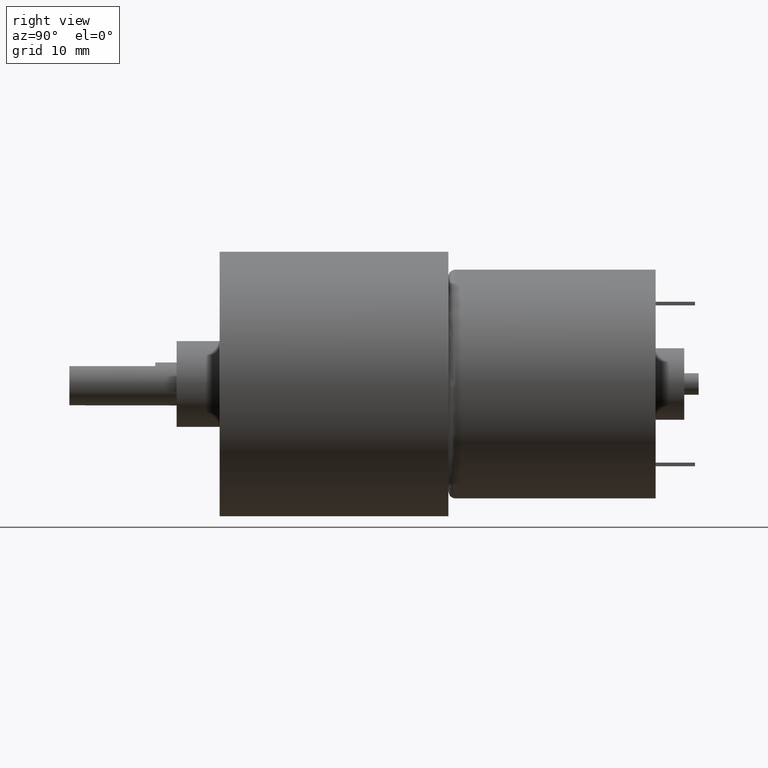
[diagram: clean part render]
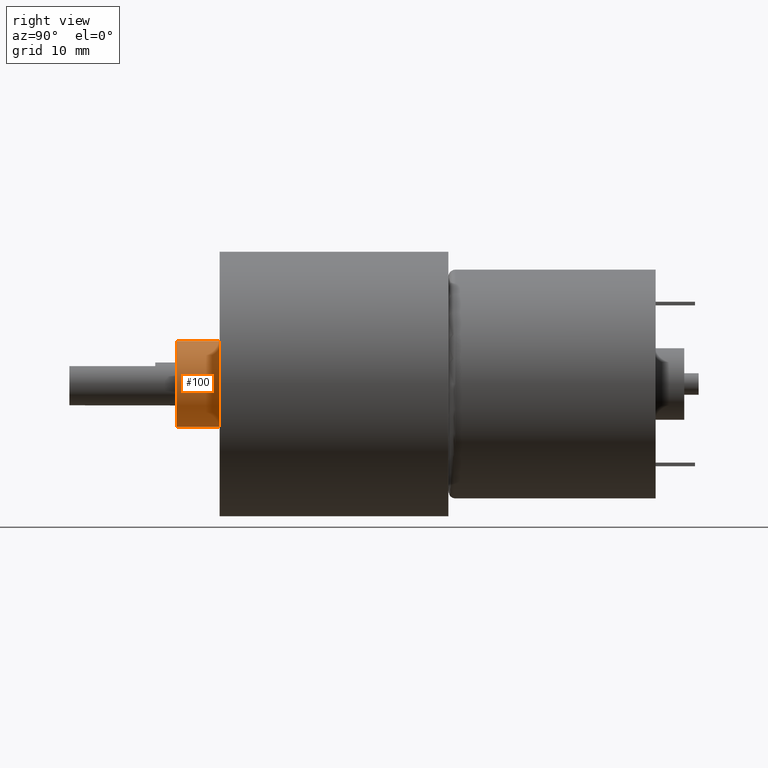
[diagram: same view with one face highlighted and labeled with its STEP entity id]
A machine part, right view. The second image highlights one B-rep face of the part: STEP entity #100.
In plain terms, the highlighted cylindrical surface (bore or boss wall) has radius 6 mm, axis along (-0, -1, 0).
Its self-contained STEP definition (entity closure, byte-faithful):
#100 = ADVANCED_FACE( '', ( #221, #222 ), #223, .T. );
#221 = FACE_OUTER_BOUND( '', #368, .T. );
#222 = FACE_OUTER_BOUND( '', #369, .T. );
#223 = CYLINDRICAL_SURFACE( '', #370, 6.00000000000000 );
#368 = EDGE_LOOP( '', ( #565 ) );
#369 = EDGE_LOOP( '', ( #566 ) );
#370 = AXIS2_PLACEMENT_3D( '', #567, #568, #569 );
#565 = ORIENTED_EDGE( '', *, *, #757, .F. );
#566 = ORIENTED_EDGE( '', *, *, #708, .T. );
#567 = CARTESIAN_POINT( '', ( 0.000000000000000, 92.6621544602951, -1.08305661972314E-016 ) );
#568 = DIRECTION( '', ( -0.000000000000000, -1.00000000000000, 1.16882304974597E-018 ) );
#569 = DIRECTION( '', ( 0.000000000000000, 1.16882304974597E-018, 1.00000000000000 ) );
#708 = EDGE_CURVE( '', #804, #804, #805, .T. );
#757 = EDGE_CURVE( '', #880, #880, #881, .T. );
#804 = VERTEX_POINT( '', #944 );
#805 = CIRCLE( '', #945, 6.00000000000000 );
#880 = VERTEX_POINT( '', #1034 );
#881 = CIRCLE( '', #1035, 6.00000000000000 );
#944 = CARTESIAN_POINT( '', ( 0.000000000000000, -6.00000000000000, 6.00000000000000 ) );
#945 = AXIS2_PLACEMENT_3D( '', #1098, #1099, #1100 );
#1034 = CARTESIAN_POINT( '', ( 0.000000000000000, 7.01293829847582E-018, 6.00000000000000 ) );
#1035 = AXIS2_PLACEMENT_3D( '', #1163, #1164, #1165 );
#1098 = CARTESIAN_POINT( '', ( 0.000000000000000, -6.00000000000000, 7.01293829847603E-018 ) );
#1099 = DIRECTION( '', ( 0.000000000000000, 1.00000000000000, -1.16882304974597E-018 ) );
#1100 = DIRECTION( '', ( 0.000000000000000, 1.16882304974597E-018, 1.00000000000000 ) );
#1163 = CARTESIAN_POINT( '', ( 0.000000000000000, 0.000000000000000, 1.92592994438724E-031 ) );
#1164 = DIRECTION( '', ( 0.000000000000000, 1.00000000000000, -1.16882304974597E-018 ) );
#1165 = DIRECTION( '', ( 0.000000000000000, 1.16882304974597E-018, 1.00000000000000 ) );